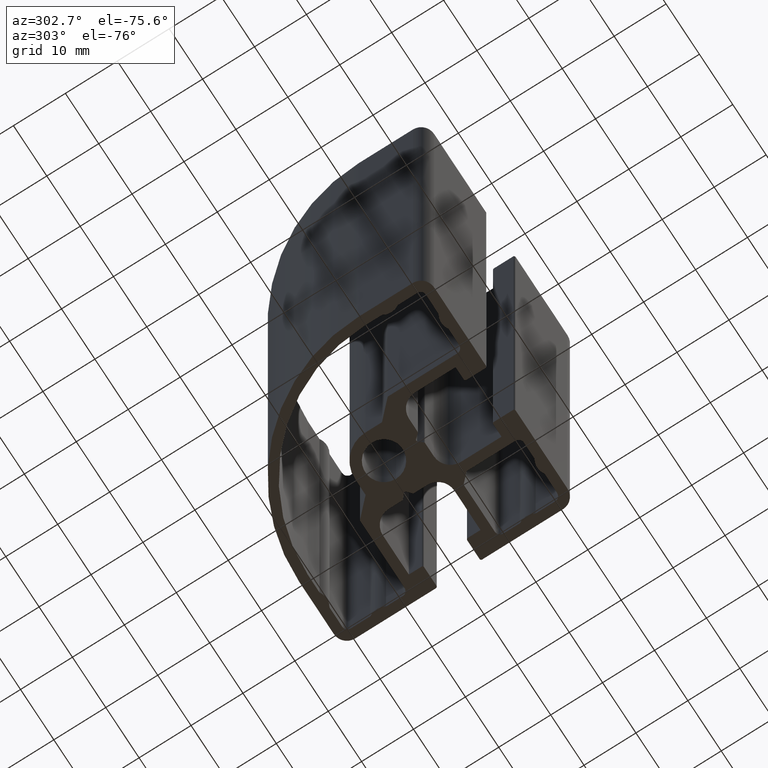
[diagram: clean part render]
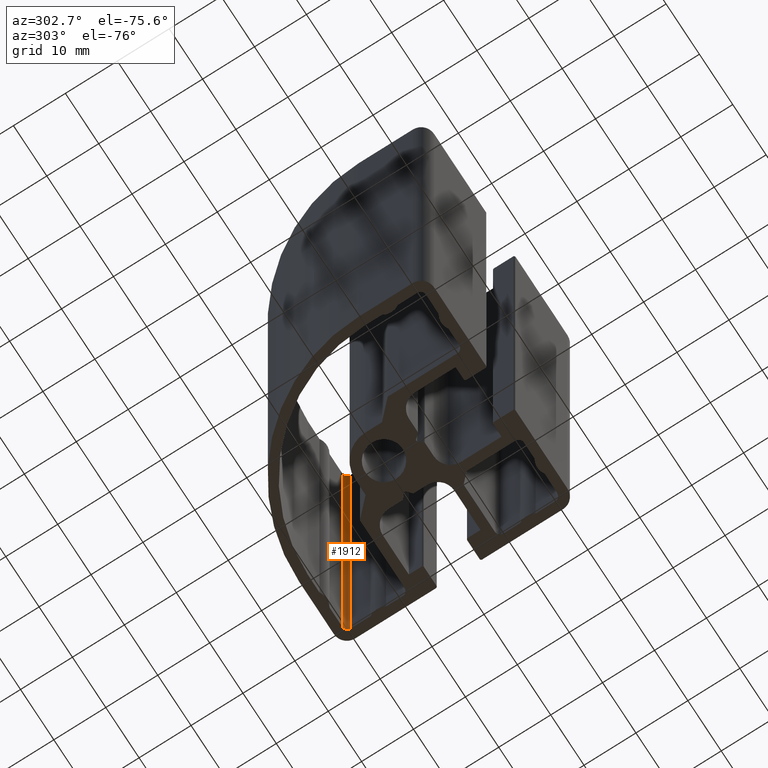
[diagram: same view with one face highlighted and labeled with its STEP entity id]
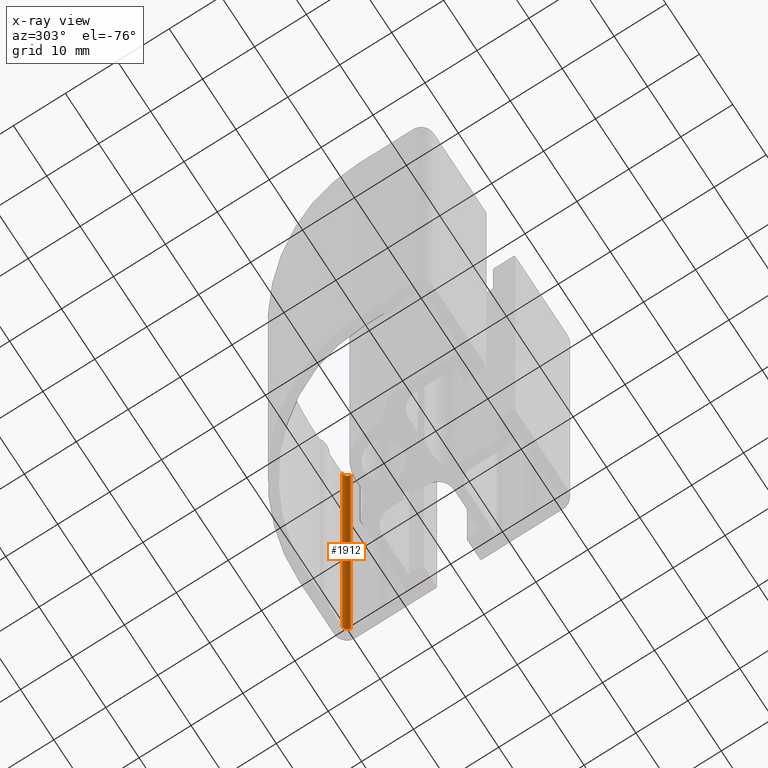
[diagram: x-ray of the same camera — body ghosted, the highlighted face saturated]
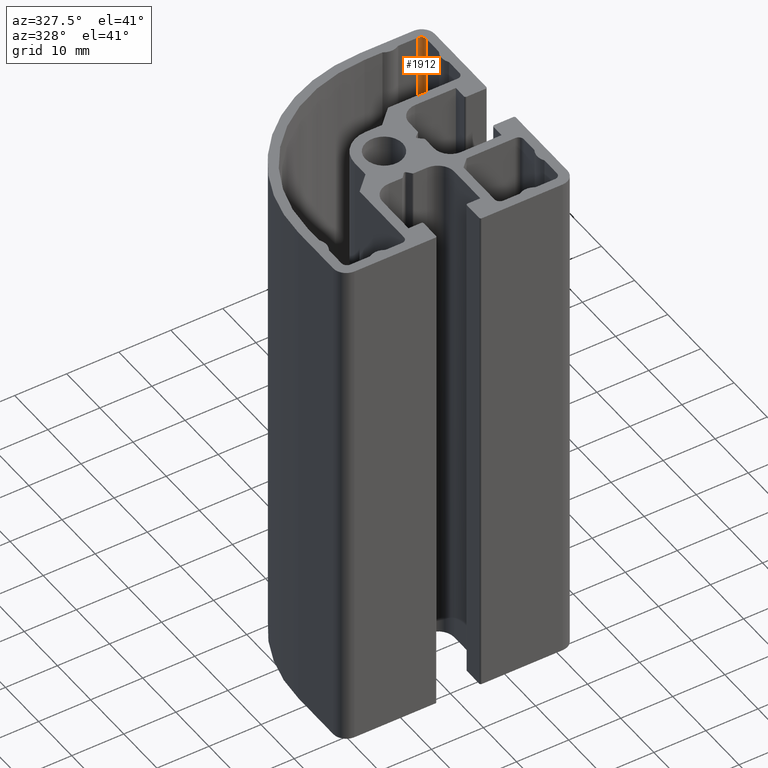
[diagram: same view with one face highlighted and labeled with its STEP entity id]
A machine part, auxiliary view. The second image highlights one B-rep face of the part: STEP entity #1912.
The next image is the same camera in x-ray: the body ghosted, the highlighted face saturated — about 0% of this face is hidden behind the body in this view.
A second angle (auxiliary view) of the same face is appended — the face is thin or edge-on in the first view.
In plain terms, the highlighted cylindrical surface (edge-blend (fillet) strip) has radius 1 mm, axis along (0, 0, 1).
Its self-contained STEP definition (entity closure, byte-faithful):
#113=FACE_OUTER_BOUND('',#212,.T.);
#212=EDGE_LOOP('',(#1408,#1409,#1410,#1411));
#355=LINE('',#3014,#545);
#357=LINE('',#3020,#547);
#545=VECTOR('',#2427,100.);
#547=VECTOR('',#2433,100.);
#702=CIRCLE('',#2060,0.999999999996);
#703=CIRCLE('',#2061,0.999999999996);
#840=VERTEX_POINT('',#3011);
#841=VERTEX_POINT('',#3013);
#842=VERTEX_POINT('',#3017);
#843=VERTEX_POINT('',#3019);
#1075=EDGE_CURVE('',#841,#840,#355,.T.);
#1077=EDGE_CURVE('',#842,#840,#702,.T.);
#1078=EDGE_CURVE('',#843,#842,#357,.T.);
#1079=EDGE_CURVE('',#841,#843,#703,.T.);
#1408=ORIENTED_EDGE('',*,*,#1077,.F.);
#1409=ORIENTED_EDGE('',*,*,#1078,.F.);
#1410=ORIENTED_EDGE('',*,*,#1079,.F.);
#1411=ORIENTED_EDGE('',*,*,#1075,.T.);
#1843=CYLINDRICAL_SURFACE('',#2059,0.999999999996);
#1912=ADVANCED_FACE('',(#113),#1843,.F.);
#2059=AXIS2_PLACEMENT_3D('',#3016,#2429,#2430);
#2060=AXIS2_PLACEMENT_3D('',#3018,#2431,#2432);
#2061=AXIS2_PLACEMENT_3D('',#3021,#2434,#2435);
#2427=DIRECTION('',(0.,0.,1.));
#2429=DIRECTION('center_axis',(0.,0.,1.));
#2430=DIRECTION('ref_axis',(-1.,-7.4606987255109E-13,0.));
#2431=DIRECTION('center_axis',(0.,0.,-1.));
#2432=DIRECTION('ref_axis',(-1.,-7.4606987255109E-13,0.));
#2433=DIRECTION('',(0.,0.,1.));
#2434=DIRECTION('center_axis',(0.,0.,1.));
#2435=DIRECTION('ref_axis',(-1.,-7.4606987255109E-13,0.));
#3011=CARTESIAN_POINT('',(20.6999999999962,19.700000000001,100.));
#3013=CARTESIAN_POINT('',(20.6999999999962,19.700000000001,0.));
#3014=CARTESIAN_POINT('',(20.6999999999962,19.700000000001,0.));
#3016=CARTESIAN_POINT('Origin',(19.7000000000002,19.7000000000003,0.));
#3017=CARTESIAN_POINT('',(19.7000000000012,20.6999999999963,100.));
#3018=CARTESIAN_POINT('Origin',(19.7000000000002,19.7000000000003,100.));
#3019=CARTESIAN_POINT('',(19.7000000000012,20.6999999999963,0.));
#3020=CARTESIAN_POINT('',(19.7000000000012,20.6999999999963,0.));
#3021=CARTESIAN_POINT('Origin',(19.7000000000002,19.7000000000003,0.));